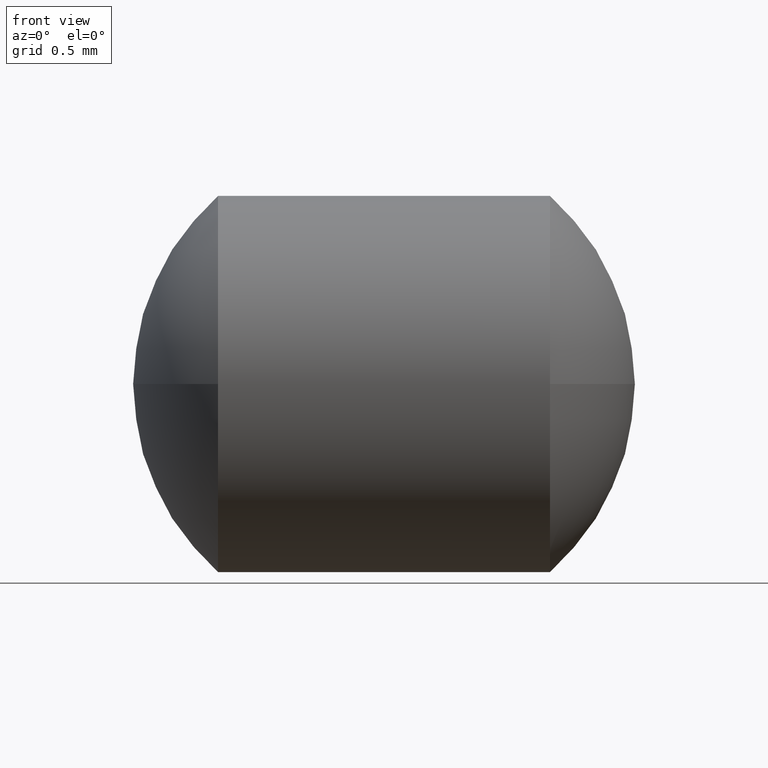
[diagram: clean part render]
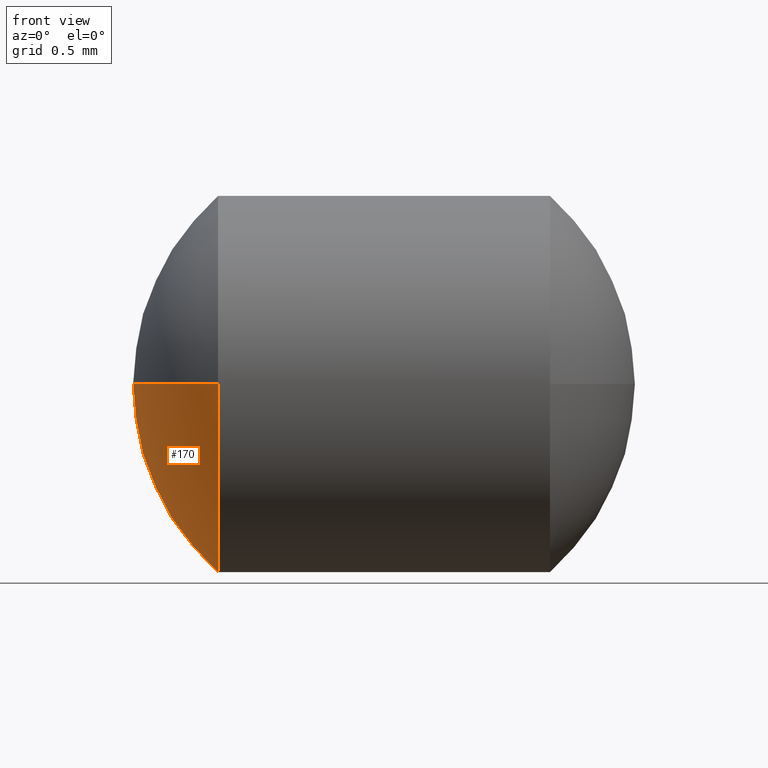
[diagram: same view with one face highlighted and labeled with its STEP entity id]
A machine part, front view. The second image highlights one B-rep face of the part: STEP entity #170.
In plain terms, the highlighted spherical surface has radius 2 mm.
Its self-contained STEP definition (entity closure, byte-faithful):
#6 = DIRECTION ( 'NONE',  ( 0.0000000000000000000, 1.000000000000000000, 1.224646799147353900E-016 ) ) ;
#8 = EDGE_CURVE ( 'NONE', #278, #230, #55, .T. ) ;
#9 = VERTEX_POINT ( 'NONE', #54 ) ;
#12 = AXIS2_PLACEMENT_3D ( 'NONE', #246, #307, #193 ) ;
#23 = FACE_OUTER_BOUND ( 'NONE', #189, .T. ) ;
#38 = DIRECTION ( 'NONE',  ( -1.000000000000000000, -0.0000000000000000000, -0.0000000000000000000 ) ) ;
#41 = CARTESIAN_POINT ( 'NONE',  ( 228.3764729188125400, 133.3448637497280600, 0.0000000000000000000 ) ) ;
#47 = AXIS2_PLACEMENT_3D ( 'NONE', #108, #262, #6 ) ;
#48 = DIRECTION ( 'NONE',  ( 1.000000000000000000, 0.0000000000000000000, 0.0000000000000000000 ) ) ;
#49 = ORIENTED_EDGE ( 'NONE', *, *, #319, .T. ) ;
#51 = DIRECTION ( 'NONE',  ( -0.0000000000000000000, 0.0000000000000000000, -1.000000000000000000 ) ) ;
#53 = AXIS2_PLACEMENT_3D ( 'NONE', #269, #112, #48 ) ;
#54 = CARTESIAN_POINT ( 'NONE',  ( 228.3764729188125400, 131.8448637497280600, -1.836970198721032200E-016 ) ) ;
#55 = CIRCLE ( 'NONE', #53, 2.000000000000001800 ) ;
#56 = AXIS2_PLACEMENT_3D ( 'NONE', #323, #51, #239 ) ;
#59 = CARTESIAN_POINT ( 'NONE',  ( 228.3764729188125400, 133.3448637497280600, -1.500000000000001300 ) ) ;
#85 = CIRCLE ( 'NONE', #261, 1.500000000000001300 ) ;
#108 = CARTESIAN_POINT ( 'NONE',  ( 229.6993485743448400, 133.3448637497280600, 0.0000000000000000000 ) ) ;
#112 = DIRECTION ( 'NONE',  ( -0.0000000000000000000, 0.0000000000000000000, 1.000000000000000000 ) ) ;
#119 = DIRECTION ( 'NONE',  ( 0.0000000000000000000, 0.0000000000000000000, 1.000000000000000000 ) ) ;
#141 = CIRCLE ( 'NONE', #47, 2.000000000000001800 ) ;
#152 = EDGE_CURVE ( 'NONE', #9, #230, #141, .T. ) ;
#160 = CARTESIAN_POINT ( 'NONE',  ( 227.6993485743448400, 133.3448637497280600, 0.0000000000000000000 ) ) ;
#170 = ADVANCED_FACE ( 'NONE', ( #23 ), #226, .T. ) ;
#189 = EDGE_LOOP ( 'NONE', ( #223, #295, #273, #49 ) ) ;
#193 = DIRECTION ( 'NONE',  ( 0.0000000000000000000, 0.0000000000000000000, 1.000000000000000000 ) ) ;
#220 = CARTESIAN_POINT ( 'NONE',  ( 228.3764729188125400, 134.8448637497280600, 0.0000000000000000000 ) ) ;
#223 = ORIENTED_EDGE ( 'NONE', *, *, #299, .T. ) ;
#226 = SPHERICAL_SURFACE ( 'NONE', #56, 2.000000000000002700 ) ;
#229 = CIRCLE ( 'NONE', #12, 1.500000000000001300 ) ;
#230 = VERTEX_POINT ( 'NONE', #160 ) ;
#239 = DIRECTION ( 'NONE',  ( 0.0000000000000000000, 1.000000000000000000, 0.0000000000000000000 ) ) ;
#246 = CARTESIAN_POINT ( 'NONE',  ( 228.3764729188125400, 133.3448637497280600, 0.0000000000000000000 ) ) ;
#261 = AXIS2_PLACEMENT_3D ( 'NONE', #41, #38, #119 ) ;
#262 = DIRECTION ( 'NONE',  ( 0.0000000000000000000, 1.224646799147353200E-016, -1.000000000000000000 ) ) ;
#266 = VERTEX_POINT ( 'NONE', #59 ) ;
#269 = CARTESIAN_POINT ( 'NONE',  ( 229.6993485743448400, 133.3448637497280600, 0.0000000000000000000 ) ) ;
#273 = ORIENTED_EDGE ( 'NONE', *, *, #8, .F. ) ;
#278 = VERTEX_POINT ( 'NONE', #220 ) ;
#295 = ORIENTED_EDGE ( 'NONE', *, *, #152, .T. ) ;
#299 = EDGE_CURVE ( 'NONE', #266, #9, #229, .T. ) ;
#307 = DIRECTION ( 'NONE',  ( -1.000000000000000000, -0.0000000000000000000, -0.0000000000000000000 ) ) ;
#319 = EDGE_CURVE ( 'NONE', #278, #266, #85, .T. ) ;
#323 = CARTESIAN_POINT ( 'NONE',  ( 229.6993485743448400, 133.3448637497280600, 0.0000000000000000000 ) ) ;